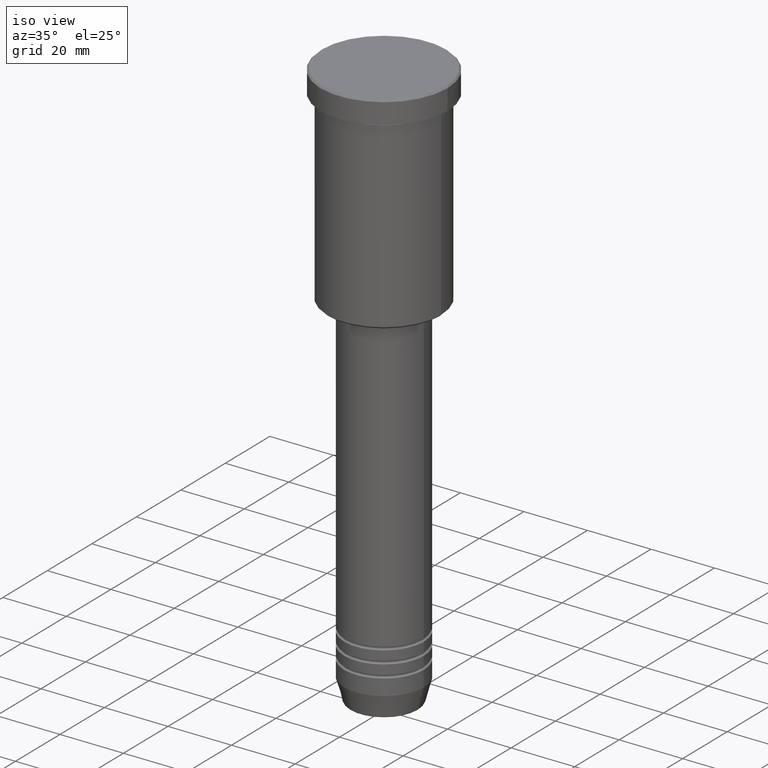
[diagram: clean part render]
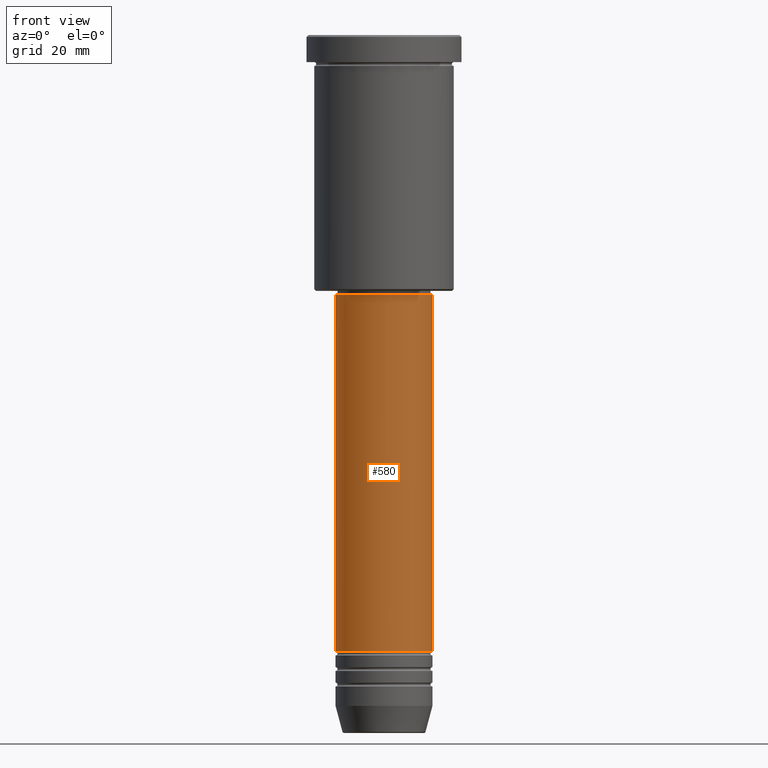
[diagram: tour spotlight — one face highlighted and labeled with its STEP entity id]
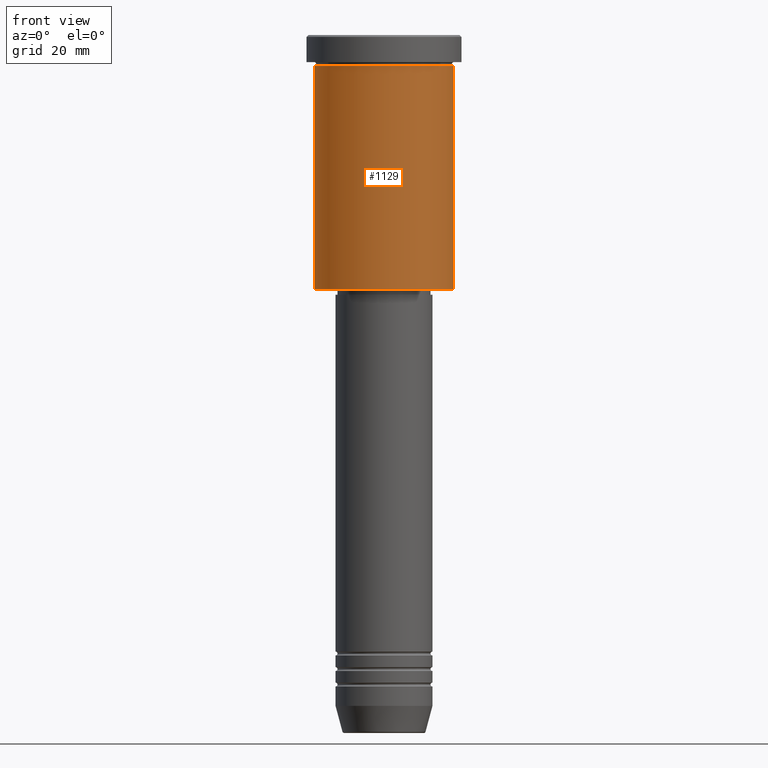
[diagram: tour spotlight — one face highlighted and labeled with its STEP entity id]
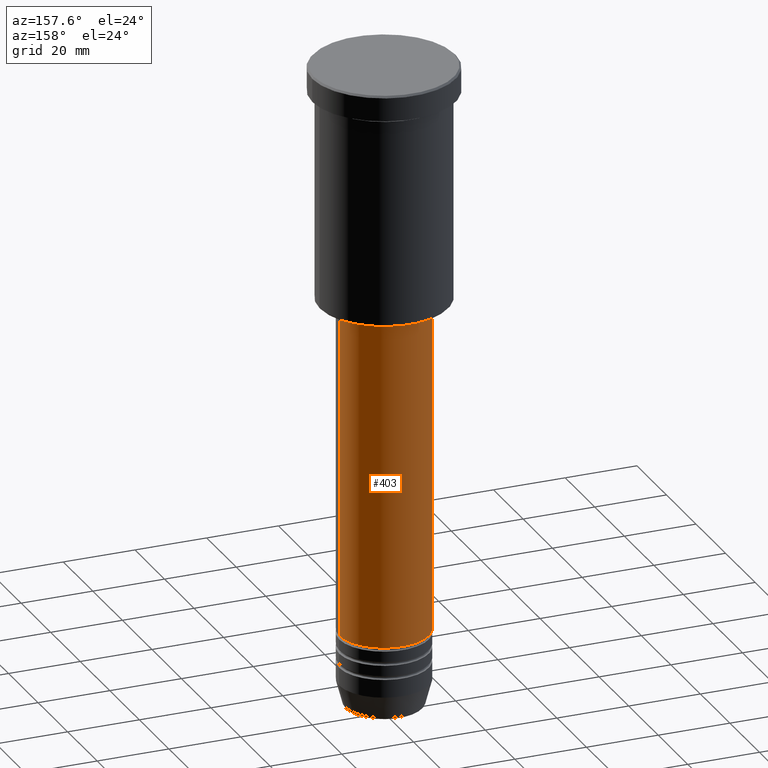
[diagram: tour spotlight — one face highlighted and labeled with its STEP entity id]
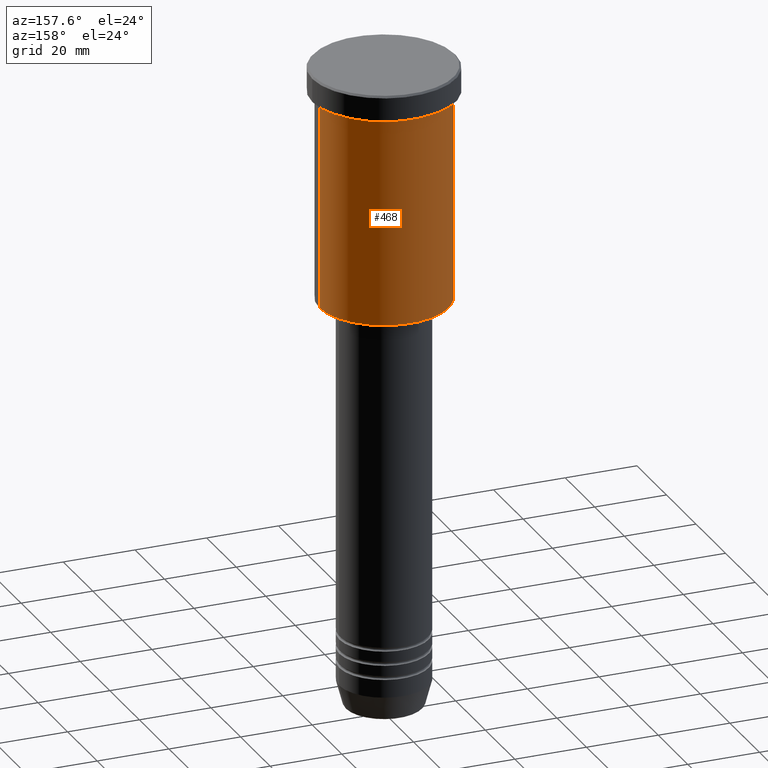
[diagram: tour spotlight — one face highlighted and labeled with its STEP entity id]
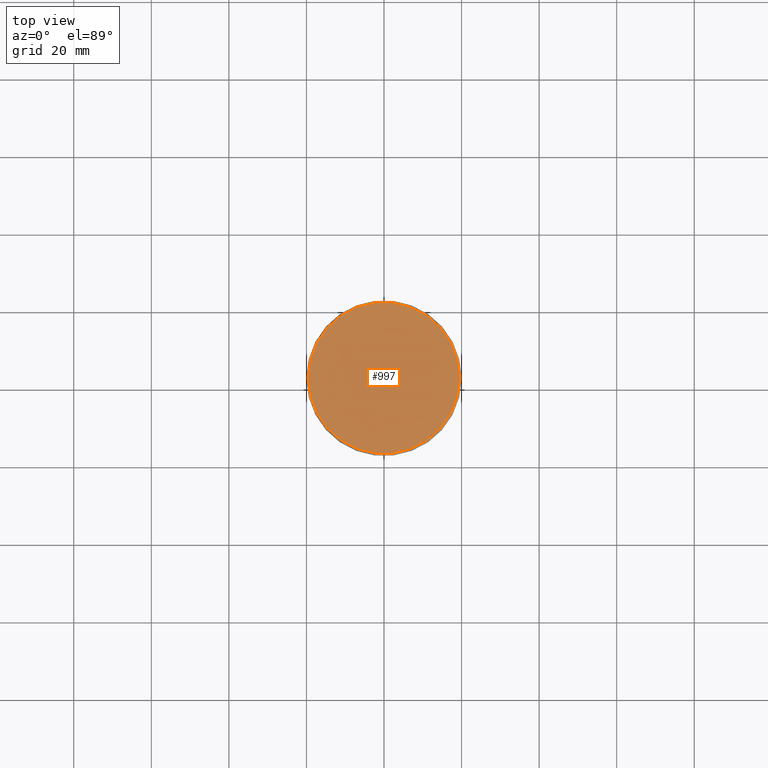
[diagram: tour spotlight — one face highlighted and labeled with its STEP entity id]
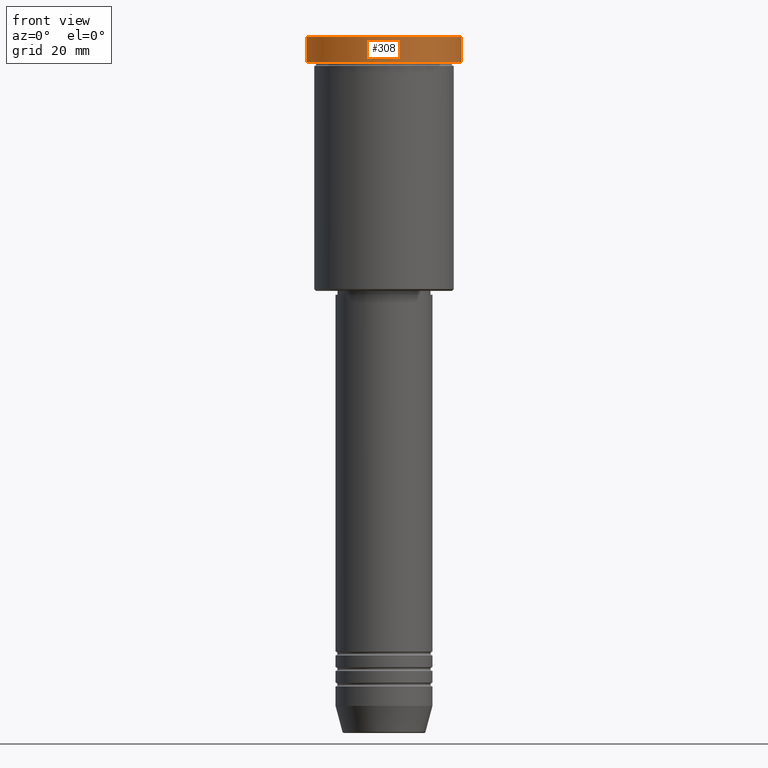
[diagram: tour spotlight — one face highlighted and labeled with its STEP entity id]
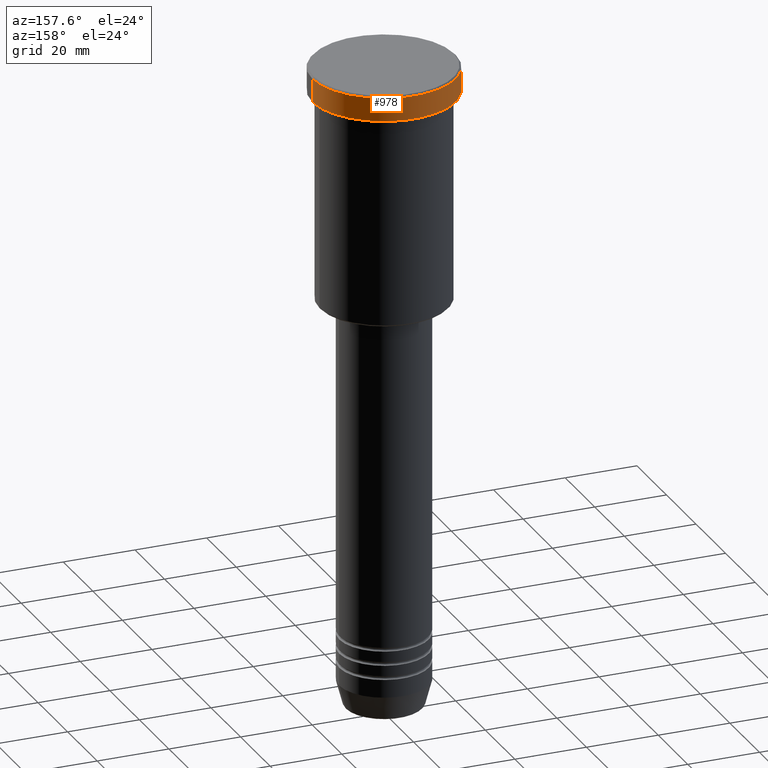
[diagram: tour spotlight — one face highlighted and labeled with its STEP entity id]
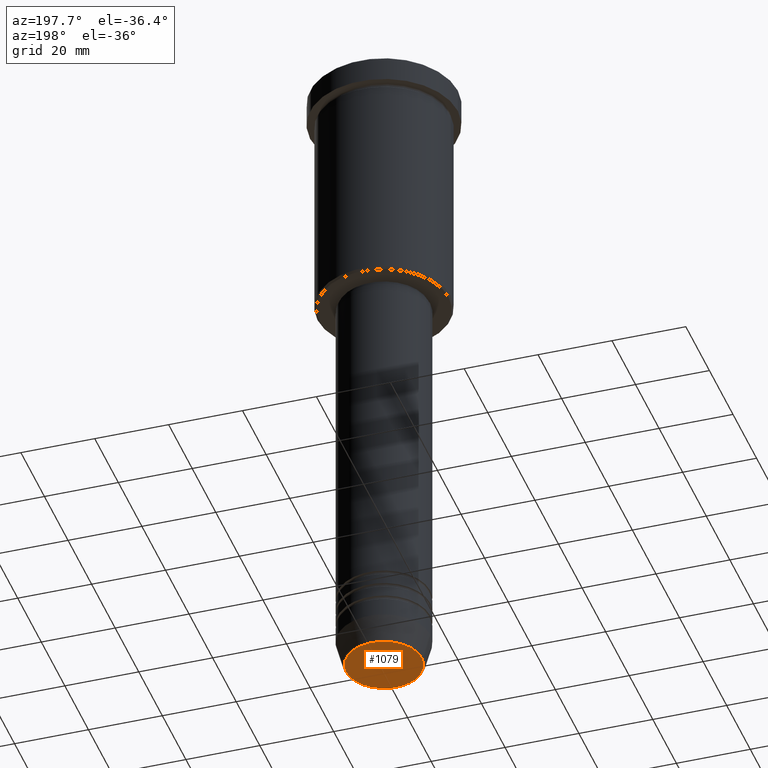
[diagram: tour spotlight — one face highlighted and labeled with its STEP entity id]
A machine part: a face-by-face anatomy tour. The part has 43 B-rep faces; the first image is the clean iso view, then the 8 largest visible faces are spotlighted one at a time (largest first), each with its STEP entity span.

Face 1 — front view, entity #580. In plain terms, the highlighted cylindrical surface (partial cylindrical patch) has radius 12.5 mm, axis along (-0, -0, 1).
Definition (entity closure, byte-faithful):
#36 = CYLINDRICAL_SURFACE ( 'NONE', #1121, 12.50000000000000000 ) ;
#40 = ORIENTED_EDGE ( 'NONE', *, *, #942, .T. ) ;
#126 = DIRECTION ( 'NONE',  ( 1.000000000000000000, 0.000000000000000000, 0.000000000000000000 ) ) ;
#213 = DIRECTION ( 'NONE',  ( 1.000000000000000000, 0.000000000000000000, 0.000000000000000000 ) ) ;
#216 = DIRECTION ( 'NONE',  ( -0.000000000000000000, -0.000000000000000000, 1.000000000000000000 ) ) ;
#229 = DIRECTION ( 'NONE',  ( -0.000000000000000000, -0.000000000000000000, 1.000000000000000000 ) ) ;
#234 = CARTESIAN_POINT ( 'NONE',  ( -12.50000000000000000, 1.530808498934191521E-15, -159.0000000000000000 ) ) ;
#404 = CARTESIAN_POINT ( 'NONE',  ( 0.000000000000000000, 0.000000000000000000, 0.000000000000000000 ) ) ;
#439 = VECTOR ( 'NONE', #725, 1000.000000000000000 ) ;
#545 = CARTESIAN_POINT ( 'NONE',  ( 12.50000000000000000, 0.000000000000000000, -159.0000000000000000 ) ) ;
#561 = VERTEX_POINT ( 'NONE', #1133 ) ;
#580 = ADVANCED_FACE ( 'NONE', ( #681 ), #36, .T. ) ;
#597 = EDGE_CURVE ( 'NONE', #674, #921, #947, .T. ) ;
#599 = DIRECTION ( 'NONE',  ( 1.000000000000000000, 0.000000000000000000, 0.000000000000000000 ) ) ;
#629 = VERTEX_POINT ( 'NONE', #759 ) ;
#674 = VERTEX_POINT ( 'NONE', #234 ) ;
#681 = FACE_OUTER_BOUND ( 'NONE', #817, .T. ) ;
#685 = ORIENTED_EDGE ( 'NONE', *, *, #693, .F. ) ;
#693 = EDGE_CURVE ( 'NONE', #629, #561, #743, .T. ) ;
#710 = EDGE_CURVE ( 'NONE', #674, #629, #798, .T. ) ;
#713 = CARTESIAN_POINT ( 'NONE',  ( -12.50000000000000000, 1.530808498934191521E-15, 0.000000000000000000 ) ) ;
#725 = DIRECTION ( 'NONE',  ( -0.000000000000000000, -0.000000000000000000, 1.000000000000000000 ) ) ;
#743 = CIRCLE ( 'NONE', #1026, 12.50000000000000000 ) ;
#759 = CARTESIAN_POINT ( 'NONE',  ( -12.50000000000000000, 1.530808498934191521E-15, -67.00000000000002842 ) ) ;
#781 = AXIS2_PLACEMENT_3D ( 'NONE', #1027, #1037, #213 ) ;
#798 = LINE ( 'NONE', #713, #895 ) ;
#817 = EDGE_LOOP ( 'NONE', ( #834, #968, #40, #685 ) ) ;
#834 = ORIENTED_EDGE ( 'NONE', *, *, #710, .F. ) ;
#895 = VECTOR ( 'NONE', #1158, 1000.000000000000000 ) ;
#921 = VERTEX_POINT ( 'NONE', #545 ) ;
#942 = EDGE_CURVE ( 'NONE', #921, #561, #1015, .T. ) ;
#947 = CIRCLE ( 'NONE', #781, 12.50000000000000000 ) ;
#959 = CARTESIAN_POINT ( 'NONE',  ( 0.000000000000000000, 0.000000000000000000, -67.00000000000002842 ) ) ;
#968 = ORIENTED_EDGE ( 'NONE', *, *, #597, .T. ) ;
#1015 = LINE ( 'NONE', #1099, #439 ) ;
#1026 = AXIS2_PLACEMENT_3D ( 'NONE', #959, #216, #126 ) ;
#1027 = CARTESIAN_POINT ( 'NONE',  ( 0.000000000000000000, 0.000000000000000000, -159.0000000000000000 ) ) ;
#1037 = DIRECTION ( 'NONE',  ( -0.000000000000000000, -0.000000000000000000, 1.000000000000000000 ) ) ;
#1099 = CARTESIAN_POINT ( 'NONE',  ( 12.50000000000000000, 0.000000000000000000, 0.000000000000000000 ) ) ;
#1121 = AXIS2_PLACEMENT_3D ( 'NONE', #404, #229, #599 ) ;
#1133 = CARTESIAN_POINT ( 'NONE',  ( 12.50000000000000000, 0.000000000000000000, -67.00000000000002842 ) ) ;
#1158 = DIRECTION ( 'NONE',  ( -0.000000000000000000, -0.000000000000000000, 1.000000000000000000 ) ) ;

Face 2 — front view, entity #1129. In plain terms, the highlighted cylindrical surface (partial cylindrical patch) has radius 18 mm, axis along (-0, -0, 1).
Definition (entity closure, byte-faithful):
#6 = EDGE_CURVE ( 'NONE', #517, #598, #986, .T. ) ;
#47 = CARTESIAN_POINT ( 'NONE',  ( 18.00000000000000000, 0.000000000000000000, -7.999999999999996447 ) ) ;
#120 = DIRECTION ( 'NONE',  ( -0.000000000000000000, -0.000000000000000000, 1.000000000000000000 ) ) ;
#141 = DIRECTION ( 'NONE',  ( -1.000000000000000000, 0.000000000000000000, 0.000000000000000000 ) ) ;
#176 = ORIENTED_EDGE ( 'NONE', *, *, #630, .T. ) ;
#191 = DIRECTION ( 'NONE',  ( 1.000000000000000000, 0.000000000000000000, 0.000000000000000000 ) ) ;
#199 = CARTESIAN_POINT ( 'NONE',  ( 0.000000000000000000, 0.000000000000000000, -7.999999999999996447 ) ) ;
#215 = VERTEX_POINT ( 'NONE', #423 ) ;
#220 = CARTESIAN_POINT ( 'NONE',  ( 0.000000000000000000, 0.000000000000000000, -65.50000000000000000 ) ) ;
#225 = VECTOR ( 'NONE', #391, 1000.000000000000000 ) ;
#236 = ORIENTED_EDGE ( 'NONE', *, *, #993, .F. ) ;
#318 = VERTEX_POINT ( 'NONE', #433 ) ;
#385 = AXIS2_PLACEMENT_3D ( 'NONE', #606, #866, #1137 ) ;
#391 = DIRECTION ( 'NONE',  ( -0.000000000000000000, -0.000000000000000000, 1.000000000000000000 ) ) ;
#423 = CARTESIAN_POINT ( 'NONE',  ( 18.00000000000000000, 0.000000000000000000, -65.50000000000000000 ) ) ;
#433 = CARTESIAN_POINT ( 'NONE',  ( -18.00000000000000000, 2.204364238465235428E-15, -65.50000000000000000 ) ) ;
#488 = EDGE_CURVE ( 'NONE', #215, #598, #924, .T. ) ;
#511 = AXIS2_PLACEMENT_3D ( 'NONE', #199, #1021, #191 ) ;
#513 = AXIS2_PLACEMENT_3D ( 'NONE', #220, #120, #141 ) ;
#517 = VERTEX_POINT ( 'NONE', #844 ) ;
#556 = CARTESIAN_POINT ( 'NONE',  ( 18.00000000000000000, 0.000000000000000000, 0.000000000000000000 ) ) ;
#594 = FACE_OUTER_BOUND ( 'NONE', #621, .T. ) ;
#598 = VERTEX_POINT ( 'NONE', #47 ) ;
#606 = CARTESIAN_POINT ( 'NONE',  ( 0.000000000000000000, 0.000000000000000000, 0.000000000000000000 ) ) ;
#621 = EDGE_LOOP ( 'NONE', ( #236, #176, #813, #845 ) ) ;
#630 = EDGE_CURVE ( 'NONE', #318, #215, #856, .T. ) ;
#640 = DIRECTION ( 'NONE',  ( -0.000000000000000000, -0.000000000000000000, 1.000000000000000000 ) ) ;
#731 = CARTESIAN_POINT ( 'NONE',  ( -18.00000000000000000, 2.204364238465235428E-15, 0.000000000000000000 ) ) ;
#813 = ORIENTED_EDGE ( 'NONE', *, *, #488, .T. ) ;
#844 = CARTESIAN_POINT ( 'NONE',  ( -18.00000000000000000, 2.204364238465235428E-15, -7.999999999999996447 ) ) ;
#845 = ORIENTED_EDGE ( 'NONE', *, *, #6, .F. ) ;
#856 = CIRCLE ( 'NONE', #513, 18.00000000000000000 ) ;
#866 = DIRECTION ( 'NONE',  ( -0.000000000000000000, -0.000000000000000000, 1.000000000000000000 ) ) ;
#924 = LINE ( 'NONE', #556, #225 ) ;
#952 = CYLINDRICAL_SURFACE ( 'NONE', #385, 18.00000000000000000 ) ;
#986 = CIRCLE ( 'NONE', #511, 18.00000000000000000 ) ;
#993 = EDGE_CURVE ( 'NONE', #318, #517, #1092, .T. ) ;
#1021 = DIRECTION ( 'NONE',  ( -0.000000000000000000, -0.000000000000000000, 1.000000000000000000 ) ) ;
#1086 = VECTOR ( 'NONE', #640, 1000.000000000000000 ) ;
#1092 = LINE ( 'NONE', #731, #1086 ) ;
#1129 = ADVANCED_FACE ( 'NONE', ( #594 ), #952, .T. ) ;
#1137 = DIRECTION ( 'NONE',  ( 1.000000000000000000, 0.000000000000000000, 0.000000000000000000 ) ) ;

Face 3 — auxiliary view, entity #403. In plain terms, the highlighted cylindrical surface (partial cylindrical patch) has radius 12.5 mm, axis along (-0, -0, 1).
Definition (entity closure, byte-faithful):
#42 = EDGE_CURVE ( 'NONE', #561, #629, #379, .T. ) ;
#52 = CIRCLE ( 'NONE', #398, 12.50000000000000000 ) ;
#125 = EDGE_CURVE ( 'NONE', #921, #674, #52, .T. ) ;
#173 = AXIS2_PLACEMENT_3D ( 'NONE', #650, #370, #915 ) ;
#209 = CARTESIAN_POINT ( 'NONE',  ( 0.000000000000000000, 0.000000000000000000, -67.00000000000002842 ) ) ;
#224 = AXIS2_PLACEMENT_3D ( 'NONE', #209, #465, #643 ) ;
#234 = CARTESIAN_POINT ( 'NONE',  ( -12.50000000000000000, 1.530808498934191521E-15, -159.0000000000000000 ) ) ;
#303 = ORIENTED_EDGE ( 'NONE', *, *, #125, .T. ) ;
#327 = DIRECTION ( 'NONE',  ( -0.000000000000000000, -0.000000000000000000, 1.000000000000000000 ) ) ;
#370 = DIRECTION ( 'NONE',  ( -0.000000000000000000, -0.000000000000000000, 1.000000000000000000 ) ) ;
#379 = CIRCLE ( 'NONE', #224, 12.50000000000000000 ) ;
#398 = AXIS2_PLACEMENT_3D ( 'NONE', #415, #327, #949 ) ;
#403 = ADVANCED_FACE ( 'NONE', ( #1108 ), #641, .T. ) ;
#415 = CARTESIAN_POINT ( 'NONE',  ( 0.000000000000000000, 0.000000000000000000, -159.0000000000000000 ) ) ;
#439 = VECTOR ( 'NONE', #725, 1000.000000000000000 ) ;
#465 = DIRECTION ( 'NONE',  ( -0.000000000000000000, -0.000000000000000000, 1.000000000000000000 ) ) ;
#506 = ORIENTED_EDGE ( 'NONE', *, *, #42, .F. ) ;
#545 = CARTESIAN_POINT ( 'NONE',  ( 12.50000000000000000, 0.000000000000000000, -159.0000000000000000 ) ) ;
#561 = VERTEX_POINT ( 'NONE', #1133 ) ;
#629 = VERTEX_POINT ( 'NONE', #759 ) ;
#641 = CYLINDRICAL_SURFACE ( 'NONE', #173, 12.50000000000000000 ) ;
#643 = DIRECTION ( 'NONE',  ( 1.000000000000000000, 0.000000000000000000, 0.000000000000000000 ) ) ;
#650 = CARTESIAN_POINT ( 'NONE',  ( 0.000000000000000000, 0.000000000000000000, 0.000000000000000000 ) ) ;
#674 = VERTEX_POINT ( 'NONE', #234 ) ;
#710 = EDGE_CURVE ( 'NONE', #674, #629, #798, .T. ) ;
#713 = CARTESIAN_POINT ( 'NONE',  ( -12.50000000000000000, 1.530808498934191521E-15, 0.000000000000000000 ) ) ;
#725 = DIRECTION ( 'NONE',  ( -0.000000000000000000, -0.000000000000000000, 1.000000000000000000 ) ) ;
#759 = CARTESIAN_POINT ( 'NONE',  ( -12.50000000000000000, 1.530808498934191521E-15, -67.00000000000002842 ) ) ;
#777 = EDGE_LOOP ( 'NONE', ( #303, #865, #506, #1039 ) ) ;
#798 = LINE ( 'NONE', #713, #895 ) ;
#865 = ORIENTED_EDGE ( 'NONE', *, *, #710, .T. ) ;
#895 = VECTOR ( 'NONE', #1158, 1000.000000000000000 ) ;
#915 = DIRECTION ( 'NONE',  ( 1.000000000000000000, 0.000000000000000000, 0.000000000000000000 ) ) ;
#921 = VERTEX_POINT ( 'NONE', #545 ) ;
#942 = EDGE_CURVE ( 'NONE', #921, #561, #1015, .T. ) ;
#949 = DIRECTION ( 'NONE',  ( 1.000000000000000000, 0.000000000000000000, 0.000000000000000000 ) ) ;
#1015 = LINE ( 'NONE', #1099, #439 ) ;
#1039 = ORIENTED_EDGE ( 'NONE', *, *, #942, .F. ) ;
#1099 = CARTESIAN_POINT ( 'NONE',  ( 12.50000000000000000, 0.000000000000000000, 0.000000000000000000 ) ) ;
#1108 = FACE_OUTER_BOUND ( 'NONE', #777, .T. ) ;
#1133 = CARTESIAN_POINT ( 'NONE',  ( 12.50000000000000000, 0.000000000000000000, -67.00000000000002842 ) ) ;
#1158 = DIRECTION ( 'NONE',  ( -0.000000000000000000, -0.000000000000000000, 1.000000000000000000 ) ) ;

Face 4 — auxiliary view, entity #468. In plain terms, the highlighted cylindrical surface (partial cylindrical patch) has radius 18 mm, axis along (-0, -0, 1).
Definition (entity closure, byte-faithful):
#18 = CIRCLE ( 'NONE', #727, 18.00000000000000000 ) ;
#47 = CARTESIAN_POINT ( 'NONE',  ( 18.00000000000000000, 0.000000000000000000, -7.999999999999996447 ) ) ;
#107 = DIRECTION ( 'NONE',  ( 1.000000000000000000, 0.000000000000000000, 0.000000000000000000 ) ) ;
#117 = ORIENTED_EDGE ( 'NONE', *, *, #1028, .F. ) ;
#129 = DIRECTION ( 'NONE',  ( -0.000000000000000000, -0.000000000000000000, 1.000000000000000000 ) ) ;
#168 = ORIENTED_EDGE ( 'NONE', *, *, #993, .T. ) ;
#171 = DIRECTION ( 'NONE',  ( -0.000000000000000000, -0.000000000000000000, 1.000000000000000000 ) ) ;
#188 = CYLINDRICAL_SURFACE ( 'NONE', #666, 18.00000000000000000 ) ;
#215 = VERTEX_POINT ( 'NONE', #423 ) ;
#225 = VECTOR ( 'NONE', #391, 1000.000000000000000 ) ;
#266 = CIRCLE ( 'NONE', #784, 18.00000000000000000 ) ;
#318 = VERTEX_POINT ( 'NONE', #433 ) ;
#388 = FACE_OUTER_BOUND ( 'NONE', #962, .T. ) ;
#391 = DIRECTION ( 'NONE',  ( -0.000000000000000000, -0.000000000000000000, 1.000000000000000000 ) ) ;
#423 = CARTESIAN_POINT ( 'NONE',  ( 18.00000000000000000, 0.000000000000000000, -65.50000000000000000 ) ) ;
#430 = ORIENTED_EDGE ( 'NONE', *, *, #488, .F. ) ;
#433 = CARTESIAN_POINT ( 'NONE',  ( -18.00000000000000000, 2.204364238465235428E-15, -65.50000000000000000 ) ) ;
#468 = ADVANCED_FACE ( 'NONE', ( #388 ), #188, .T. ) ;
#488 = EDGE_CURVE ( 'NONE', #215, #598, #924, .T. ) ;
#517 = VERTEX_POINT ( 'NONE', #844 ) ;
#526 = CARTESIAN_POINT ( 'NONE',  ( 0.000000000000000000, 0.000000000000000000, -65.50000000000000000 ) ) ;
#556 = CARTESIAN_POINT ( 'NONE',  ( 18.00000000000000000, 0.000000000000000000, 0.000000000000000000 ) ) ;
#598 = VERTEX_POINT ( 'NONE', #47 ) ;
#638 = CARTESIAN_POINT ( 'NONE',  ( 0.000000000000000000, 0.000000000000000000, 0.000000000000000000 ) ) ;
#640 = DIRECTION ( 'NONE',  ( -0.000000000000000000, -0.000000000000000000, 1.000000000000000000 ) ) ;
#666 = AXIS2_PLACEMENT_3D ( 'NONE', #638, #1016, #107 ) ;
#727 = AXIS2_PLACEMENT_3D ( 'NONE', #790, #129, #796 ) ;
#731 = CARTESIAN_POINT ( 'NONE',  ( -18.00000000000000000, 2.204364238465235428E-15, 0.000000000000000000 ) ) ;
#754 = EDGE_CURVE ( 'NONE', #215, #318, #266, .T. ) ;
#784 = AXIS2_PLACEMENT_3D ( 'NONE', #526, #171, #806 ) ;
#790 = CARTESIAN_POINT ( 'NONE',  ( 0.000000000000000000, 0.000000000000000000, -7.999999999999996447 ) ) ;
#796 = DIRECTION ( 'NONE',  ( 1.000000000000000000, 0.000000000000000000, 0.000000000000000000 ) ) ;
#806 = DIRECTION ( 'NONE',  ( -1.000000000000000000, 0.000000000000000000, 0.000000000000000000 ) ) ;
#844 = CARTESIAN_POINT ( 'NONE',  ( -18.00000000000000000, 2.204364238465235428E-15, -7.999999999999996447 ) ) ;
#924 = LINE ( 'NONE', #556, #225 ) ;
#957 = ORIENTED_EDGE ( 'NONE', *, *, #754, .T. ) ;
#962 = EDGE_LOOP ( 'NONE', ( #957, #168, #117, #430 ) ) ;
#993 = EDGE_CURVE ( 'NONE', #318, #517, #1092, .T. ) ;
#1016 = DIRECTION ( 'NONE',  ( -0.000000000000000000, -0.000000000000000000, 1.000000000000000000 ) ) ;
#1028 = EDGE_CURVE ( 'NONE', #598, #517, #18, .T. ) ;
#1086 = VECTOR ( 'NONE', #640, 1000.000000000000000 ) ;
#1092 = LINE ( 'NONE', #731, #1086 ) ;

Face 5 — top view, entity #997. In plain terms, the highlighted planar face has unit normal (0, -0, 1).
Definition (entity closure, byte-faithful):
#69 = EDGE_LOOP ( 'NONE', ( #610, #544 ) ) ;
#70 = DIRECTION ( 'NONE',  ( 1.000000000000000000, 0.000000000000000000, 0.000000000000000000 ) ) ;
#223 = DIRECTION ( 'NONE',  ( 1.000000000000000000, 0.000000000000000000, 0.000000000000000000 ) ) ;
#232 = CARTESIAN_POINT ( 'NONE',  ( 0.000000000000000000, 0.000000000000000000, 0.000000000000000000 ) ) ;
#341 = FACE_OUTER_BOUND ( 'NONE', #69, .T. ) ;
#367 = EDGE_CURVE ( 'NONE', #1077, #393, #1161, .T. ) ;
#393 = VERTEX_POINT ( 'NONE', #440 ) ;
#427 = DIRECTION ( 'NONE',  ( -0.000000000000000000, -0.000000000000000000, 1.000000000000000000 ) ) ;
#440 = CARTESIAN_POINT ( 'NONE',  ( -19.50000000000001776, 0.000000000000000000, 0.000000000000000000 ) ) ;
#544 = ORIENTED_EDGE ( 'NONE', *, *, #367, .T. ) ;
#595 = CIRCLE ( 'NONE', #1045, 19.50000000000001776 ) ;
#610 = ORIENTED_EDGE ( 'NONE', *, *, #807, .T. ) ;
#623 = CARTESIAN_POINT ( 'NONE',  ( 0.000000000000000000, 0.000000000000000000, 0.000000000000000000 ) ) ;
#648 = AXIS2_PLACEMENT_3D ( 'NONE', #623, #427, #794 ) ;
#696 = CARTESIAN_POINT ( 'NONE',  ( 19.50000000000001776, 2.418677428316023515E-15, 0.000000000000000000 ) ) ;
#794 = DIRECTION ( 'NONE',  ( 1.000000000000000000, 0.000000000000000000, 0.000000000000000000 ) ) ;
#807 = EDGE_CURVE ( 'NONE', #393, #1077, #595, .T. ) ;
#890 = DIRECTION ( 'NONE',  ( -0.000000000000000000, -0.000000000000000000, 1.000000000000000000 ) ) ;
#964 = CARTESIAN_POINT ( 'NONE',  ( 0.000000000000000000, 0.000000000000000000, 0.000000000000000000 ) ) ;
#971 = AXIS2_PLACEMENT_3D ( 'NONE', #232, #1150, #223 ) ;
#997 = ADVANCED_FACE ( 'NONE', ( #341 ), #1145, .T. ) ;
#1045 = AXIS2_PLACEMENT_3D ( 'NONE', #964, #890, #70 ) ;
#1077 = VERTEX_POINT ( 'NONE', #696 ) ;
#1145 = PLANE ( 'NONE',  #971 ) ;
#1150 = DIRECTION ( 'NONE',  ( 0.000000000000000000, -0.000000000000000000, 1.000000000000000000 ) ) ;
#1161 = CIRCLE ( 'NONE', #648, 19.50000000000001776 ) ;

Face 6 — front view, entity #308. In plain terms, the highlighted cylindrical surface (partial cylindrical patch) has radius 20 mm, axis along (-0, -0, 1).
Definition (entity closure, byte-faithful):
#3 = ORIENTED_EDGE ( 'NONE', *, *, #452, .T. ) ;
#19 = CARTESIAN_POINT ( 'NONE',  ( -20.00000000000000000, 2.449293598294706513E-15, 0.000000000000000000 ) ) ;
#31 = AXIS2_PLACEMENT_3D ( 'NONE', #444, #812, #886 ) ;
#35 = CIRCLE ( 'NONE', #1105, 20.00000000000000000 ) ;
#74 = CARTESIAN_POINT ( 'NONE',  ( 20.00000000000000000, 0.000000000000000000, -0.4999999999999970024 ) ) ;
#102 = LINE ( 'NONE', #568, #876 ) ;
#226 = ORIENTED_EDGE ( 'NONE', *, *, #908, .T. ) ;
#249 = EDGE_CURVE ( 'NONE', #392, #697, #779, .T. ) ;
#276 = DIRECTION ( 'NONE',  ( -0.000000000000000000, -0.000000000000000000, 1.000000000000000000 ) ) ;
#308 = ADVANCED_FACE ( 'NONE', ( #609 ), #1081, .T. ) ;
#343 = AXIS2_PLACEMENT_3D ( 'NONE', #516, #719, #347 ) ;
#347 = DIRECTION ( 'NONE',  ( 1.000000000000000000, 0.000000000000000000, 0.000000000000000000 ) ) ;
#377 = DIRECTION ( 'NONE',  ( 1.000000000000000000, 0.000000000000000000, 0.000000000000000000 ) ) ;
#392 = VERTEX_POINT ( 'NONE', #74 ) ;
#428 = ORIENTED_EDGE ( 'NONE', *, *, #519, .F. ) ;
#444 = CARTESIAN_POINT ( 'NONE',  ( 0.000000000000000000, 0.000000000000000000, -0.4999999999999970024 ) ) ;
#452 = EDGE_CURVE ( 'NONE', #636, #392, #102, .T. ) ;
#484 = CARTESIAN_POINT ( 'NONE',  ( 20.00000000000000000, 0.000000000000000000, -6.999999999999995559 ) ) ;
#516 = CARTESIAN_POINT ( 'NONE',  ( 0.000000000000000000, 0.000000000000000000, 0.000000000000000000 ) ) ;
#519 = EDGE_CURVE ( 'NONE', #1178, #697, #1094, .T. ) ;
#524 = CARTESIAN_POINT ( 'NONE',  ( -20.00000000000000000, 2.449293598294706513E-15, -6.999999999999995559 ) ) ;
#531 = VECTOR ( 'NONE', #276, 1000.000000000000000 ) ;
#568 = CARTESIAN_POINT ( 'NONE',  ( 20.00000000000000000, 0.000000000000000000, 0.000000000000000000 ) ) ;
#589 = CARTESIAN_POINT ( 'NONE',  ( -20.00000000000000000, 2.449293598294706513E-15, -0.4999999999999970024 ) ) ;
#609 = FACE_OUTER_BOUND ( 'NONE', #775, .T. ) ;
#636 = VERTEX_POINT ( 'NONE', #484 ) ;
#637 = DIRECTION ( 'NONE',  ( -0.000000000000000000, -0.000000000000000000, 1.000000000000000000 ) ) ;
#697 = VERTEX_POINT ( 'NONE', #589 ) ;
#719 = DIRECTION ( 'NONE',  ( -0.000000000000000000, -0.000000000000000000, 1.000000000000000000 ) ) ;
#775 = EDGE_LOOP ( 'NONE', ( #428, #226, #3, #1073 ) ) ;
#779 = CIRCLE ( 'NONE', #31, 20.00000000000000000 ) ;
#812 = DIRECTION ( 'NONE',  ( 0.000000000000000000, 0.000000000000000000, -1.000000000000000000 ) ) ;
#837 = CARTESIAN_POINT ( 'NONE',  ( 0.000000000000000000, 0.000000000000000000, -6.999999999999995559 ) ) ;
#876 = VECTOR ( 'NONE', #919, 1000.000000000000000 ) ;
#886 = DIRECTION ( 'NONE',  ( 1.000000000000000000, 0.000000000000000000, 0.000000000000000000 ) ) ;
#908 = EDGE_CURVE ( 'NONE', #1178, #636, #35, .T. ) ;
#919 = DIRECTION ( 'NONE',  ( -0.000000000000000000, -0.000000000000000000, 1.000000000000000000 ) ) ;
#1073 = ORIENTED_EDGE ( 'NONE', *, *, #249, .T. ) ;
#1081 = CYLINDRICAL_SURFACE ( 'NONE', #343, 20.00000000000000000 ) ;
#1094 = LINE ( 'NONE', #19, #531 ) ;
#1105 = AXIS2_PLACEMENT_3D ( 'NONE', #837, #637, #377 ) ;
#1178 = VERTEX_POINT ( 'NONE', #524 ) ;

Face 7 — auxiliary view, entity #978. In plain terms, the highlighted cylindrical surface (partial cylindrical patch) has radius 20 mm, axis along (-0, -0, 1).
Definition (entity closure, byte-faithful):
#19 = CARTESIAN_POINT ( 'NONE',  ( -20.00000000000000000, 2.449293598294706513E-15, 0.000000000000000000 ) ) ;
#53 = DIRECTION ( 'NONE',  ( 0.000000000000000000, 0.000000000000000000, -1.000000000000000000 ) ) ;
#65 = DIRECTION ( 'NONE',  ( -0.000000000000000000, -0.000000000000000000, 1.000000000000000000 ) ) ;
#74 = CARTESIAN_POINT ( 'NONE',  ( 20.00000000000000000, 0.000000000000000000, -0.4999999999999970024 ) ) ;
#85 = ORIENTED_EDGE ( 'NONE', *, *, #452, .F. ) ;
#102 = LINE ( 'NONE', #568, #876 ) ;
#136 = DIRECTION ( 'NONE',  ( 1.000000000000000000, 0.000000000000000000, 0.000000000000000000 ) ) ;
#269 = CYLINDRICAL_SURFACE ( 'NONE', #786, 20.00000000000000000 ) ;
#276 = DIRECTION ( 'NONE',  ( -0.000000000000000000, -0.000000000000000000, 1.000000000000000000 ) ) ;
#286 = CIRCLE ( 'NONE', #822, 20.00000000000000000 ) ;
#369 = DIRECTION ( 'NONE',  ( 1.000000000000000000, 0.000000000000000000, 0.000000000000000000 ) ) ;
#392 = VERTEX_POINT ( 'NONE', #74 ) ;
#452 = EDGE_CURVE ( 'NONE', #636, #392, #102, .T. ) ;
#457 = AXIS2_PLACEMENT_3D ( 'NONE', #867, #53, #136 ) ;
#484 = CARTESIAN_POINT ( 'NONE',  ( 20.00000000000000000, 0.000000000000000000, -6.999999999999995559 ) ) ;
#502 = EDGE_LOOP ( 'NONE', ( #771, #795, #825, #85 ) ) ;
#519 = EDGE_CURVE ( 'NONE', #1178, #697, #1094, .T. ) ;
#524 = CARTESIAN_POINT ( 'NONE',  ( -20.00000000000000000, 2.449293598294706513E-15, -6.999999999999995559 ) ) ;
#531 = VECTOR ( 'NONE', #276, 1000.000000000000000 ) ;
#568 = CARTESIAN_POINT ( 'NONE',  ( 20.00000000000000000, 0.000000000000000000, 0.000000000000000000 ) ) ;
#589 = CARTESIAN_POINT ( 'NONE',  ( -20.00000000000000000, 2.449293598294706513E-15, -0.4999999999999970024 ) ) ;
#636 = VERTEX_POINT ( 'NONE', #484 ) ;
#642 = EDGE_CURVE ( 'NONE', #697, #392, #930, .T. ) ;
#697 = VERTEX_POINT ( 'NONE', #589 ) ;
#771 = ORIENTED_EDGE ( 'NONE', *, *, #841, .T. ) ;
#786 = AXIS2_PLACEMENT_3D ( 'NONE', #996, #821, #369 ) ;
#795 = ORIENTED_EDGE ( 'NONE', *, *, #519, .T. ) ;
#821 = DIRECTION ( 'NONE',  ( -0.000000000000000000, -0.000000000000000000, 1.000000000000000000 ) ) ;
#822 = AXIS2_PLACEMENT_3D ( 'NONE', #984, #65, #897 ) ;
#825 = ORIENTED_EDGE ( 'NONE', *, *, #642, .T. ) ;
#841 = EDGE_CURVE ( 'NONE', #636, #1178, #286, .T. ) ;
#867 = CARTESIAN_POINT ( 'NONE',  ( 0.000000000000000000, 0.000000000000000000, -0.4999999999999970024 ) ) ;
#876 = VECTOR ( 'NONE', #919, 1000.000000000000000 ) ;
#897 = DIRECTION ( 'NONE',  ( 1.000000000000000000, 0.000000000000000000, 0.000000000000000000 ) ) ;
#919 = DIRECTION ( 'NONE',  ( -0.000000000000000000, -0.000000000000000000, 1.000000000000000000 ) ) ;
#922 = FACE_OUTER_BOUND ( 'NONE', #502, .T. ) ;
#930 = CIRCLE ( 'NONE', #457, 20.00000000000000000 ) ;
#978 = ADVANCED_FACE ( 'NONE', ( #922 ), #269, .T. ) ;
#984 = CARTESIAN_POINT ( 'NONE',  ( 0.000000000000000000, 0.000000000000000000, -6.999999999999995559 ) ) ;
#996 = CARTESIAN_POINT ( 'NONE',  ( 0.000000000000000000, 0.000000000000000000, 0.000000000000000000 ) ) ;
#1094 = LINE ( 'NONE', #19, #531 ) ;
#1178 = VERTEX_POINT ( 'NONE', #524 ) ;

Face 8 — auxiliary view, entity #1079. In plain terms, the highlighted planar face has unit normal (0, -0, 1).
Definition (entity closure, byte-faithful):
#22 = ORIENTED_EDGE ( 'NONE', *, *, #588, .T. ) ;
#44 = ORIENTED_EDGE ( 'NONE', *, *, #917, .T. ) ;
#45 = FACE_OUTER_BOUND ( 'NONE', #538, .T. ) ;
#254 = CARTESIAN_POINT ( 'NONE',  ( -10.24069215899266538, 1.283696036640842967E-15, -180.0000000000000000 ) ) ;
#300 = CARTESIAN_POINT ( 'NONE',  ( 0.000000000000000000, 0.000000000000000000, -180.0000000000000000 ) ) ;
#331 = CARTESIAN_POINT ( 'NONE',  ( 10.24069215899266538, 0.000000000000000000, -180.0000000000000000 ) ) ;
#340 = VERTEX_POINT ( 'NONE', #254 ) ;
#400 = CIRCLE ( 'NONE', #475, 10.24069215899266538 ) ;
#475 = AXIS2_PLACEMENT_3D ( 'NONE', #300, #664, #1128 ) ;
#494 = CIRCLE ( 'NONE', #706, 10.24069215899266538 ) ;
#538 = EDGE_LOOP ( 'NONE', ( #22, #44 ) ) ;
#588 = EDGE_CURVE ( 'NONE', #722, #340, #400, .T. ) ;
#654 = DIRECTION ( 'NONE',  ( 0.000000000000000000, 0.000000000000000000, -1.000000000000000000 ) ) ;
#664 = DIRECTION ( 'NONE',  ( 0.000000000000000000, 0.000000000000000000, -1.000000000000000000 ) ) ;
#706 = AXIS2_PLACEMENT_3D ( 'NONE', #1176, #654, #1112 ) ;
#722 = VERTEX_POINT ( 'NONE', #331 ) ;
#884 = CARTESIAN_POINT ( 'NONE',  ( 0.000000000000000000, 0.000000000000000000, -180.0000000000000000 ) ) ;
#917 = EDGE_CURVE ( 'NONE', #340, #722, #494, .T. ) ;
#950 = AXIS2_PLACEMENT_3D ( 'NONE', #884, #1059, #969 ) ;
#969 = DIRECTION ( 'NONE',  ( 1.000000000000000000, 0.000000000000000000, 0.000000000000000000 ) ) ;
#1059 = DIRECTION ( 'NONE',  ( 0.000000000000000000, -0.000000000000000000, 1.000000000000000000 ) ) ;
#1068 = PLANE ( 'NONE',  #950 ) ;
#1079 = ADVANCED_FACE ( 'NONE', ( #45 ), #1068, .F. ) ;
#1112 = DIRECTION ( 'NONE',  ( 1.000000000000000000, 0.000000000000000000, 0.000000000000000000 ) ) ;
#1128 = DIRECTION ( 'NONE',  ( 1.000000000000000000, 0.000000000000000000, 0.000000000000000000 ) ) ;
#1176 = CARTESIAN_POINT ( 'NONE',  ( 0.000000000000000000, 0.000000000000000000, -180.0000000000000000 ) ) ;